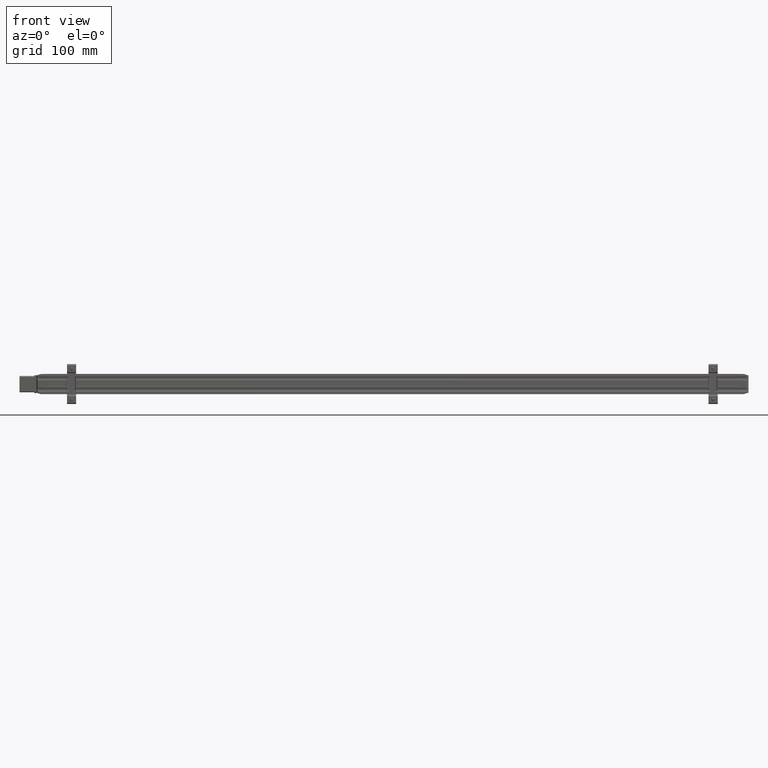
[diagram: clean part render]
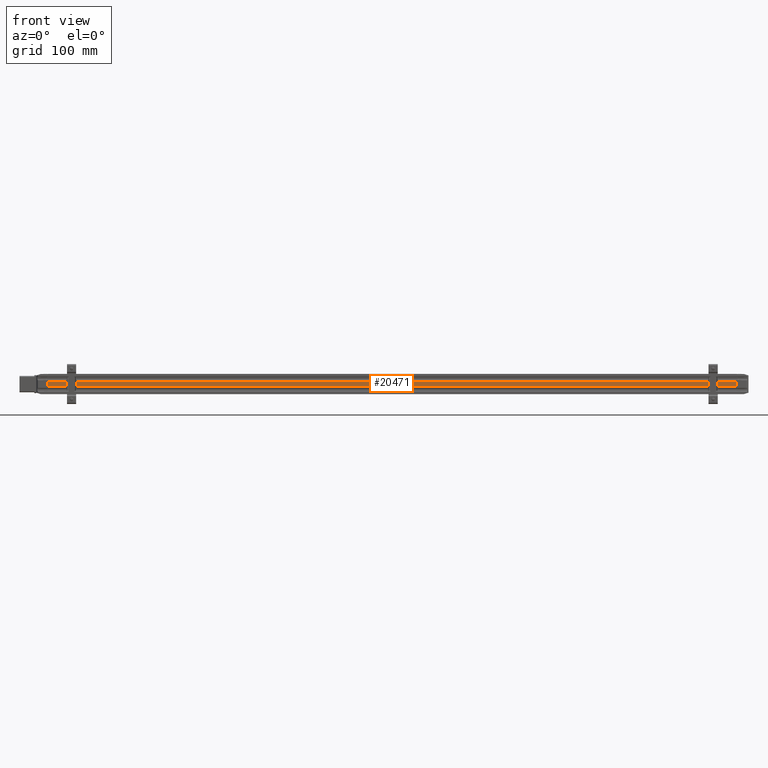
[diagram: same view with one face highlighted and labeled with its STEP entity id]
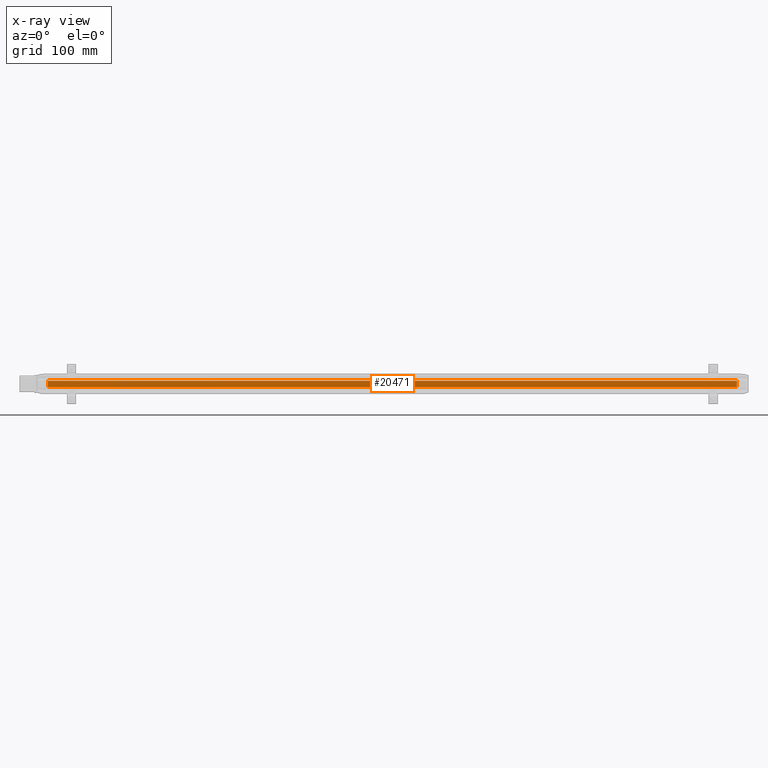
[diagram: x-ray of the same camera — body ghosted, the highlighted face saturated]
A machine part, front view. The second image highlights one B-rep face of the part: STEP entity #20471.
The next image is the same camera in x-ray: the body ghosted, the highlighted face saturated — about 0% of this face is hidden behind the body in this view.
In plain terms, the highlighted planar face has unit normal (0, 1, -0).
Its self-contained STEP definition (entity closure, byte-faithful):
#306 = CARTESIAN_POINT ( 'NONE',  ( -11.81102362204724621, 0.2367734739763778518, -0.8483578963779530024 ) ) ;
#3004 = ORIENTED_EDGE ( 'NONE', *, *, #5408, .T. ) ;
#4363 = CARTESIAN_POINT ( 'NONE',  ( 32.28346456692914046, 0.2367734739763778518, -0.8483578963779530024 ) ) ;
#4580 = CARTESIAN_POINT ( 'NONE',  ( -11.81102362204724621, 0.2367734739763778518, -0.8483578963779530024 ) ) ;
#4854 = VECTOR ( 'NONE', #17756, 39.37007874015748143 ) ;
#5408 = EDGE_CURVE ( 'NONE', #19126, #16382, #22036, .T. ) ;
#6522 = VECTOR ( 'NONE', #16733, 39.37007874015748143 ) ;
#6727 = VERTEX_POINT ( 'NONE', #4580 ) ;
#8432 = EDGE_CURVE ( 'NONE', #27390, #16382, #32172, .T. ) ;
#9054 = DIRECTION ( 'NONE',  ( 6.829894528618835672E-25, 1.000000000000000000, -1.717547996210339613E-16 ) ) ;
#11713 = VECTOR ( 'NONE', #18529, 39.37007874015748143 ) ;
#12998 = DIRECTION ( 'NONE',  ( -1.341063538876893124E-28, -1.717547996210339613E-16, -1.000000000000000000 ) ) ;
#13088 = AXIS2_PLACEMENT_3D ( 'NONE', #30669, #9054, #12998 ) ;
#13236 = PLANE ( 'NONE',  #13088 ) ;
#14778 = ORIENTED_EDGE ( 'NONE', *, *, #8432, .F. ) ;
#16382 = VERTEX_POINT ( 'NONE', #32858 ) ;
#16733 = DIRECTION ( 'NONE',  ( 1.000000000000000000, -6.829894528618835672E-25, -1.341063538875720069E-28 ) ) ;
#17756 = DIRECTION ( 'NONE',  ( 1.341063538876893124E-28, 1.717547996210339613E-16, 1.000000000000000000 ) ) ;
#18241 = DIRECTION ( 'NONE',  ( 1.000000000000000000, -6.829894528618835672E-25, -1.341063538875720069E-28 ) ) ;
#18529 = DIRECTION ( 'NONE',  ( 1.341063538876893124E-28, 1.717547996210339613E-16, 1.000000000000000000 ) ) ;
#19126 = VERTEX_POINT ( 'NONE', #38113 ) ;
#20451 = CARTESIAN_POINT ( 'NONE',  ( -11.81102362204724621, 0.2367734739763778518, -0.8483578963779530024 ) ) ;
#20471 = ADVANCED_FACE ( 'NONE', ( #41617 ), #13236, .F. ) ;
#21494 = ORIENTED_EDGE ( 'NONE', *, *, #22395, .T. ) ;
#22036 = LINE ( 'NONE', #4363, #11713 ) ;
#22395 = EDGE_CURVE ( 'NONE', #6727, #19126, #38127, .T. ) ;
#26601 = ORIENTED_EDGE ( 'NONE', *, *, #31808, .F. ) ;
#27390 = VERTEX_POINT ( 'NONE', #29013 ) ;
#29013 = CARTESIAN_POINT ( 'NONE',  ( -11.81102362204724621, 0.2367734739763779073, -0.4507201011023623805 ) ) ;
#30669 = CARTESIAN_POINT ( 'NONE',  ( -11.81102362204724621, 0.2367734739763778518, -0.8483578963779530024 ) ) ;
#31377 = EDGE_LOOP ( 'NONE', ( #3004, #14778, #26601, #21494 ) ) ;
#31808 = EDGE_CURVE ( 'NONE', #6727, #27390, #36137, .T. ) ;
#32172 = LINE ( 'NONE', #39399, #42474 ) ;
#32858 = CARTESIAN_POINT ( 'NONE',  ( 32.28346456692928257, 0.2367734739763778795, -0.4507201011023623805 ) ) ;
#36137 = LINE ( 'NONE', #306, #4854 ) ;
#38113 = CARTESIAN_POINT ( 'NONE',  ( 32.28346456692928257, 0.2367734739763778518, -0.8483578963779530024 ) ) ;
#38127 = LINE ( 'NONE', #20451, #6522 ) ;
#39399 = CARTESIAN_POINT ( 'NONE',  ( -11.81102362204724621, 0.2367734739763779073, -0.4507201011023623805 ) ) ;
#41617 = FACE_OUTER_BOUND ( 'NONE', #31377, .T. ) ;
#42474 = VECTOR ( 'NONE', #18241, 39.37007874015748143 ) ;